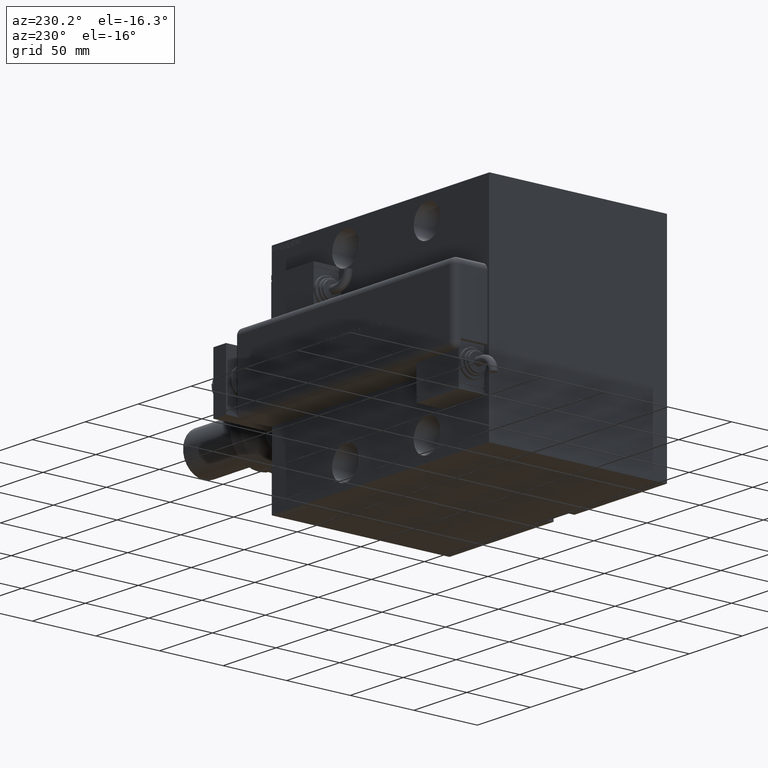
[diagram: clean part render]
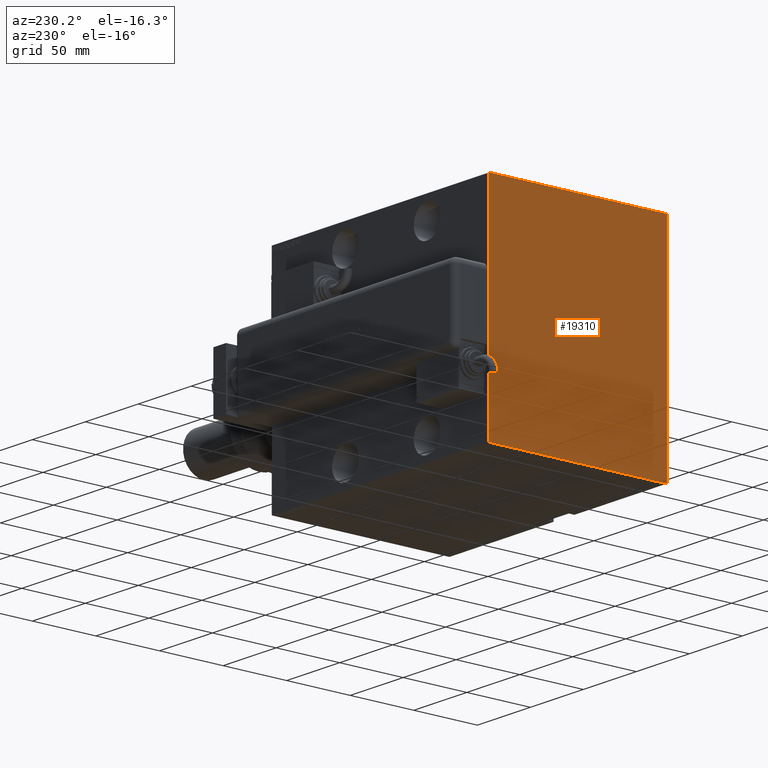
[diagram: same view with one face highlighted and labeled with its STEP entity id]
A machine part, auxiliary view. The second image highlights one B-rep face of the part: STEP entity #19310.
In plain terms, the highlighted planar face has unit normal (-1, 0, 0).
Its self-contained STEP definition (entity closure, byte-faithful):
#148 = VECTOR ( 'NONE', #47409, 1000.000000000000000 ) ;
#900 = DIRECTION ( 'NONE',  ( 0.000000000000000000, 0.000000000000000000, 1.000000000000000000 ) ) ;
#1760 = VERTEX_POINT ( 'NONE', #60528 ) ;
#2946 = CARTESIAN_POINT ( 'NONE',  ( 205.0000000000000000, 0.000000000000000000, 0.000000000000000000 ) ) ;
#4387 = VERTEX_POINT ( 'NONE', #9201 ) ;
#4942 = EDGE_CURVE ( 'NONE', #29357, #35232, #6880, .T. ) ;
#5868 = ORIENTED_EDGE ( 'NONE', *, *, #40362, .T. ) ;
#6356 = DIRECTION ( 'NONE',  ( -0.000000000000000000, -0.7071067811864985009, 0.7071067811865965336 ) ) ;
#6880 = LINE ( 'NONE', #20907, #44088 ) ;
#8531 = PLANE ( 'NONE',  #52772 ) ;
#9201 = CARTESIAN_POINT ( 'NONE',  ( 205.0000000000000000, 69.70000000000004547, 85.00000000000001421 ) ) ;
#9594 = ORIENTED_EDGE ( 'NONE', *, *, #31315, .T. ) ;
#10349 = ORIENTED_EDGE ( 'NONE', *, *, #17062, .T. ) ;
#10477 = VECTOR ( 'NONE', #6356, 1000.000000000000114 ) ;
#12156 = EDGE_CURVE ( 'NONE', #4387, #32818, #37251, .T. ) ;
#13543 = LINE ( 'NONE', #41570, #25082 ) ;
#14881 = VERTEX_POINT ( 'NONE', #55882 ) ;
#16175 = CARTESIAN_POINT ( 'NONE',  ( 205.0000000000000000, 70.00000000000002842, 84.69999999999998863 ) ) ;
#17062 = EDGE_CURVE ( 'NONE', #14881, #41802, #24557, .T. ) ;
#17879 = DIRECTION ( 'NONE',  ( 1.000000000000000000, 0.000000000000000000, -0.000000000000000000 ) ) ;
#17977 = CARTESIAN_POINT ( 'NONE',  ( 205.0000000000000000, 70.00000000000002842, 85.00000000000001421 ) ) ;
#19310 = ADVANCED_FACE ( 'NONE', ( #45894 ), #8531, .T. ) ;
#20907 = CARTESIAN_POINT ( 'NONE',  ( 205.0000000000000000, -77.35000000000646025, -77.34999999999214992 ) ) ;
#21764 = ORIENTED_EDGE ( 'NONE', *, *, #37894, .T. ) ;
#22460 = ORIENTED_EDGE ( 'NONE', *, *, #48413, .T. ) ;
#24557 = LINE ( 'NONE', #43536, #52404 ) ;
#25082 = VECTOR ( 'NONE', #37480, 1000.000000000000000 ) ;
#25758 = LINE ( 'NONE', #30717, #39197 ) ;
#25964 = CARTESIAN_POINT ( 'NONE',  ( 205.0000000000000000, 77.35000000000485443, 77.34999999999412523 ) ) ;
#29260 = ORIENTED_EDGE ( 'NONE', *, *, #4942, .T. ) ;
#29357 = VERTEX_POINT ( 'NONE', #34081 ) ;
#30201 = DIRECTION ( 'NONE',  ( -0.000000000000000000, 0.7071067811864821806, -0.7071067811866129649 ) ) ;
#30307 = LINE ( 'NONE', #25964, #10477 ) ;
#30717 = CARTESIAN_POINT ( 'NONE',  ( 205.0000000000000000, 77.34999999999190834, -77.35000000000981402 ) ) ;
#31315 = EDGE_CURVE ( 'NONE', #32818, #1760, #35106, .T. ) ;
#32177 = DIRECTION ( 'NONE',  ( -0.000000000000000000, 0.000000000000000000, -1.000000000000000000 ) ) ;
#32818 = VERTEX_POINT ( 'NONE', #45786 ) ;
#34081 = CARTESIAN_POINT ( 'NONE',  ( 205.0000000000000000, -69.99999999999998579, -84.69999999999996021 ) ) ;
#35106 = LINE ( 'NONE', #54126, #36775 ) ;
#35232 = VERTEX_POINT ( 'NONE', #51742 ) ;
#36775 = VECTOR ( 'NONE', #49435, 1000.000000000000000 ) ;
#37251 = LINE ( 'NONE', #17977, #44221 ) ;
#37480 = DIRECTION ( 'NONE',  ( 0.000000000000000000, 1.000000000000000000, 0.000000000000000000 ) ) ;
#37894 = EDGE_CURVE ( 'NONE', #1760, #29357, #60555, .T. ) ;
#38525 = ORIENTED_EDGE ( 'NONE', *, *, #12156, .T. ) ;
#39197 = VECTOR ( 'NONE', #41309, 1000.000000000000000 ) ;
#40362 = EDGE_CURVE ( 'NONE', #35232, #44642, #13543, .T. ) ;
#41309 = DIRECTION ( 'NONE',  ( -0.000000000000000000, 0.7071067811866293962, 0.7071067811864657493 ) ) ;
#41570 = CARTESIAN_POINT ( 'NONE',  ( 205.0000000000000000, -69.99999999999998579, -85.00000000000000000 ) ) ;
#41802 = VERTEX_POINT ( 'NONE', #16175 ) ;
#43536 = CARTESIAN_POINT ( 'NONE',  ( 205.0000000000000000, 70.00000000000002842, -85.00000000000000000 ) ) ;
#44088 = VECTOR ( 'NONE', #30201, 1000.000000000000000 ) ;
#44221 = VECTOR ( 'NONE', #59730, 1000.000000000000000 ) ;
#44642 = VERTEX_POINT ( 'NONE', #59388 ) ;
#45631 = EDGE_CURVE ( 'NONE', #44642, #14881, #25758, .T. ) ;
#45786 = CARTESIAN_POINT ( 'NONE',  ( 205.0000000000000000, -69.69999999999993179, 85.00000000000000000 ) ) ;
#45894 = FACE_OUTER_BOUND ( 'NONE', #45995, .T. ) ;
#45995 = EDGE_LOOP ( 'NONE', ( #5868, #52575, #10349, #22460, #38525, #9594, #21764, #29260 ) ) ;
#47409 = DIRECTION ( 'NONE',  ( 0.000000000000000000, 0.000000000000000000, -1.000000000000000000 ) ) ;
#47714 = CARTESIAN_POINT ( 'NONE',  ( 205.0000000000000000, -69.99999999999998579, 85.00000000000000000 ) ) ;
#48413 = EDGE_CURVE ( 'NONE', #41802, #4387, #30307, .T. ) ;
#49435 = DIRECTION ( 'NONE',  ( -0.000000000000000000, -0.7071067811866293962, -0.7071067811864657493 ) ) ;
#51742 = CARTESIAN_POINT ( 'NONE',  ( 205.0000000000000000, -69.70000000000000284, -85.00000000000000000 ) ) ;
#52404 = VECTOR ( 'NONE', #900, 1000.000000000000000 ) ;
#52575 = ORIENTED_EDGE ( 'NONE', *, *, #45631, .T. ) ;
#52772 = AXIS2_PLACEMENT_3D ( 'NONE', #2946, #17879, #32177 ) ;
#54126 = CARTESIAN_POINT ( 'NONE',  ( 205.0000000000000000, -77.34999999999189413, 77.35000000000979981 ) ) ;
#55882 = CARTESIAN_POINT ( 'NONE',  ( 205.0000000000000000, 70.00000000000002842, -84.70000000000001705 ) ) ;
#59388 = CARTESIAN_POINT ( 'NONE',  ( 205.0000000000000000, 69.69999999999997442, -85.00000000000000000 ) ) ;
#59730 = DIRECTION ( 'NONE',  ( 0.000000000000000000, -1.000000000000000000, -9.912705577010325549E-17 ) ) ;
#60528 = CARTESIAN_POINT ( 'NONE',  ( 205.0000000000000000, -69.99999999999998579, 84.70000000000001705 ) ) ;
#60555 = LINE ( 'NONE', #47714, #148 ) ;